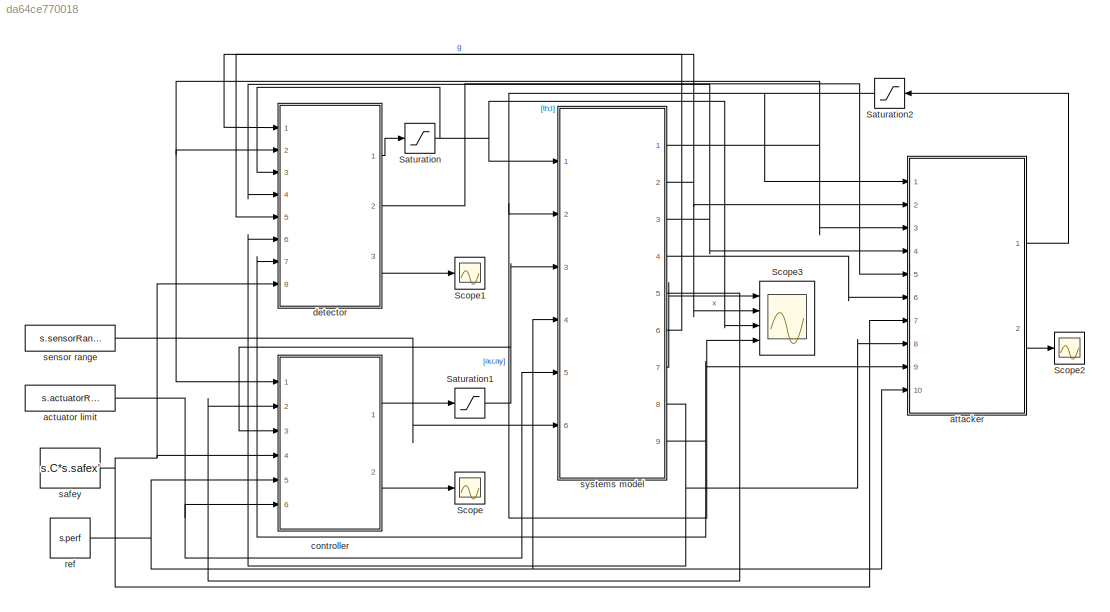
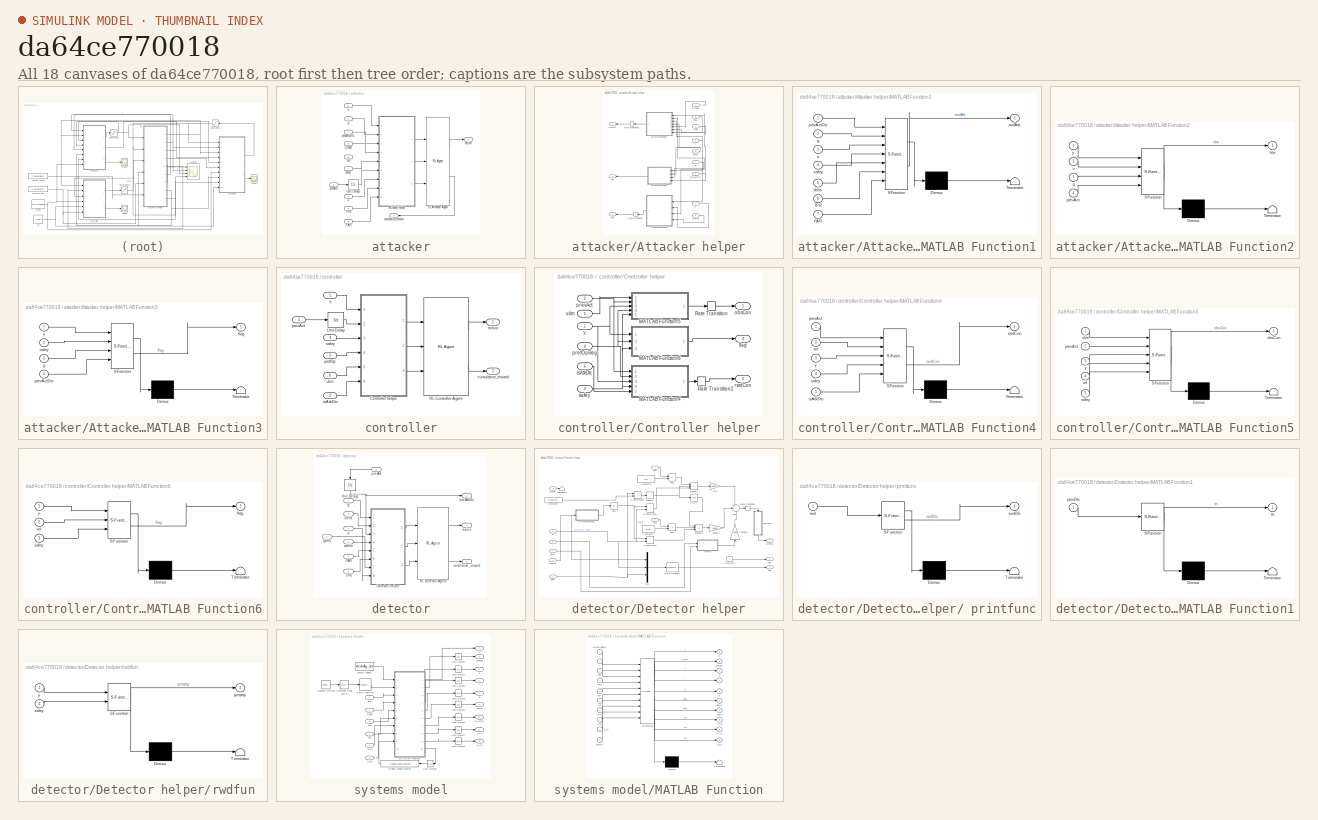
[diagram: thumbnail index - all 18 canvases of the model, root first then tree order]
MODEL slx_da64ce770018
KIND model
CONFIG AbsTol = auto
CONFIG EnableMultiTasking = off
CONFIG FixedStep = auto
CONFIG MaxStep = auto
CONFIG MinStep = auto
CONFIG RelTol = 1e-3
CONFIG SampleTimeConstraint = Unconstrained
CONFIG SolverName = VariableStepAuto
CONFIG StartTime = 0.0
CONFIG StopTime = 10
BLOCK [Saturate] Saturation
  LowerLimit = [0;1]
  UpperLimit = [100;simlen]
BLOCK [Saturate] Saturation1
  LowerLimit = -s.actuatorRange
  UpperLimit = s.actuatorRange
BLOCK [Saturate] Saturation2
  LowerLimit = -[ulim;ylim]
  NameLocation = top
  UpperLimit = [ulim;ylim]
BLOCK [Scope] Scope
  Floating = off
  NumInputPorts = 1
  Ports = [1]
  ScopeSpecificationString = Simulink.scopes.TimeScopeBlockCfg('CurrentConfiguration', extmgr.ConfigurationSet(extmgr.Configuration('Core','General UI',true),extmgr.Configuration('Core','Source UI',true),extmgr.Configuration('Sources','WiredSimulink',true,'DataLoggingVariableName','ScopeData2'),extmgr.Configuration('Visuals','Time Domain',true,'SerializedDisplays',{struct('MinYLimReal','-4538.33425','MaxYLimReal','504.25936',...<+1444ch>
BLOCK [Scope] Scope1
  Floating = off
  NumInputPorts = 1
  Ports = [1]
  ScopeSpecificationString = Simulink.scopes.TimeScopeBlockCfg('CurrentConfiguration', extmgr.ConfigurationSet(extmgr.Configuration('Core','General UI',true),extmgr.Configuration('Core','Source UI',true),extmgr.Configuration('Sources','WiredSimulink',true,'DataLoggingVariableName','ScopeData3'),extmgr.Configuration('Visuals','Time Domain',true,'SerializedDisplays',{struct('MinYLimReal','-16882.02979','MaxYLimReal','2617.97021...<+1477ch>
BLOCK [Scope] Scope2
  Floating = off
  NameLocation = top
  NumInputPorts = 1
  Ports = [1]
  ScopeSpecificationString = Simulink.scopes.TimeScopeBlockCfg('CurrentConfiguration', extmgr.ConfigurationSet(extmgr.Configuration('Core','General UI',true),extmgr.Configuration('Core','Source UI',true),extmgr.Configuration('Sources','WiredSimulink',true),extmgr.Configuration('Visuals','Time Domain',true,'SerializedDisplays',{struct('MinYLimReal','-2076.55129','MaxYLimReal','18688.96162','YLabelReal','','MinYLimMag','  0.000...<+1436ch>
BLOCK [Scope] Scope3
  Floating = off
  NumInputPorts = 4
  Ports = [4]
  ScopeSpecificationString = Simulink.scopes.TimeScopeBlockCfg('CurrentConfiguration', extmgr.ConfigurationSet(extmgr.Configuration('Core','General UI',true),extmgr.Configuration('Core','Source UI',true),extmgr.Configuration('Sources','WiredSimulink',true,'DataLoggingVariableName','ScopeData1'),extmgr.Configuration('Visuals','Time Domain',true,'SerializedDisplays',{struct('MinYLimReal','-6.89206','MaxYLimReal','50.46208','YLa...<+1700ch>
BLOCK [Constant] actuator limit
  Value = s.actuatorRange
BLOCK [SubSystem] attacker
  Ports = [10, 2]
  RequestExecContextInheritance = off
BLOCK [SubSystem] attacker/Attacker helper
  Ports = [9, 3]
  RequestExecContextInheritance = off
BLOCK [Inport] attacker/Attacker helper/FAR
  Port = 9
BLOCK [SubSystem] attacker/Attacker helper/MATLAB Function1
  ErrorFcn = Stateflow.Translate.translate
  PermitHierarchicalResolution = ExplicitOnly
  Ports = [7, 1]
  RequestExecContextInheritance = off
  SFBlockType = MATLAB Function
  TreatAsAtomicUnit = on
BLOCK [Demux] attacker/Attacker helper/MATLAB Function1/ Demux 
  Outputs = 1
  Ports = [1, 1]
BLOCK [S-Function] attacker/Attacker helper/MATLAB Function1/ SFunction 
  EnableBusSupport = on
  FunctionName = sf_sfun
  PortCounts = [7 2]
  Ports = [7, 2]
  SFcnIsStateOwnerBlock = off
  SFunctionDeploymentMode = off
  Tag = Stateflow S-Function 1
BLOCK [Terminator] attacker/Attacker helper/MATLAB Function1/ Terminator 
BLOCK [Inport] attacker/Attacker helper/MATLAB Function1/FAR
  Port = 7
BLOCK [Inport] attacker/Attacker helper/MATLAB Function1/TPR
  Port = 6
BLOCK [Inport] attacker/Attacker helper/MATLAB Function1/delta
  Port = 5
BLOCK [Inport] attacker/Attacker helper/MATLAB Function1/g
  Port = 2
BLOCK [Inport] attacker/Attacker helper/MATLAB Function1/prevActDtc
BLOCK [Outport] attacker/Attacker helper/MATLAB Function1/rwdAtk
BLOCK [Inport] attacker/Attacker helper/MATLAB Function1/safey
  Port = 4
BLOCK [Inport] attacker/Attacker helper/MATLAB Function1/y
  Port = 3
BLOCK [SubSystem] attacker/Attacker helper/MATLAB Function2
  ErrorFcn = Stateflow.Translate.translate
  PermitHierarchicalResolution = ExplicitOnly
  Ports = [4, 1]
  RequestExecContextInheritance = off
  SFBlockType = MATLAB Function
  TreatAsAtomicUnit = on
BLOCK [Demux] attacker/Attacker helper/MATLAB Function2/ Demux 
  Outputs = 1
  Ports = [1, 1]
BLOCK [S-Function] attacker/Attacker helper/MATLAB Function2/ SFunction 
  EnableBusSupport = on
  FunctionName = sf_sfun
  PortCounts = [4 2]
  Ports = [4, 2]
  SFcnIsStateOwnerBlock = off
  SFunctionDeploymentMode = off
  Tag = Stateflow S-Function 3
BLOCK [Terminator] attacker/Attacker helper/MATLAB Function2/ Terminator 
BLOCK [Inport] attacker/Attacker helper/MATLAB Function2/g
  Port = 3
BLOCK [Outport] attacker/Attacker helper/MATLAB Function2/obs
BLOCK [Inport] attacker/Attacker helper/MATLAB Function2/prevAct
  Port = 4
BLOCK [Inport] attacker/Attacker helper/MATLAB Function2/u
  Port = 2
BLOCK [Inport] attacker/Attacker helper/MATLAB Function2/y
BLOCK [SubSystem] attacker/Attacker helper/MATLAB Function3
  ErrorFcn = Stateflow.Translate.translate
  PermitHierarchicalResolution = ExplicitOnly
  Ports = [4, 1]
  RequestExecContextInheritance = off
  SFBlockType = MATLAB Function
  TreatAsAtomicUnit = on
BLOCK [Demux] attacker/Attacker helper/MATLAB Function3/ Demux 
  Outputs = 1
  Ports = [1, 1]
BLOCK [S-Function] attacker/Attacker helper/MATLAB Function3/ SFunction 
  EnableBusSupport = on
  FunctionName = sf_sfun
  PortCounts = [4 2]
  Ports = [4, 2]
  SFcnIsStateOwnerBlock = off
  SFunctionDeploymentMode = off
  Tag = Stateflow S-Function 4
BLOCK [Terminator] attacker/Attacker helper/MATLAB Function3/ Terminator 
BLOCK [Outport] attacker/Attacker helper/MATLAB Function3/flag
BLOCK [Inport] attacker/Attacker helper/MATLAB Function3/g
  Port = 3
BLOCK [Inport] attacker/Attacker helper/MATLAB Function3/prevActDtc
  Port = 4
BLOCK [Inport] attacker/Attacker helper/MATLAB Function3/safey
  Port = 2
BLOCK [Inport] attacker/Attacker helper/MATLAB Function3/y
BLOCK [RateTransition] attacker/Attacker helper/Rate Transition
BLOCK [RateTransition] attacker/Attacker helper/Rate Transition1
BLOCK [Inport] attacker/Attacker helper/TPR
  Port = 8
BLOCK [Outport] attacker/Attacker helper/flag
  Port = 3
BLOCK [Inport] attacker/Attacker helper/g
  Port = 2
BLOCK [Outport] attacker/Attacker helper/obs
BLOCK [Inport] attacker/Attacker helper/prevAct
  Port = 6
BLOCK [Inport] attacker/Attacker helper/prevActDtc
  Port = 3
BLOCK [Outport] attacker/Attacker helper/rwdAtk
  Port = 2
BLOCK [Inport] attacker/Attacker helper/safey
  Port = 5
BLOCK [Inport] attacker/Attacker helper/u
  Port = 7
BLOCK [Inport] attacker/Attacker helper/y
BLOCK [Inport] attacker/Attacker helper/z_mean
  Port = 4
BLOCK [Inport] attacker/FAR
  Port = 9
BLOCK [Reference] attacker/RL Attacker Agent  REF=rllib/RL Agent
  NameLocation = top
  Ports = [3, 2]
  SourceBlock = rllib/RL Agent
  SourceProductBaseCode = RL
  SourceType = RL Agent
BLOCK [Inport] attacker/TPR
  Port = 8
BLOCK [UnitDelay] attacker/Unit Delay2
  HasFrameUpgradeWarning = on
  SampleTime = -1
BLOCK [Outport] attacker/action
BLOCK [Outport] attacker/cumulative_reward
  Port = 2
BLOCK [Inport] attacker/g
  Port = 2
BLOCK [Inport] attacker/prevAct
BLOCK [Inport] attacker/prevActDtc
  Port = 5
BLOCK [Inport] attacker/ref
  Port = 10
BLOCK [Inport] attacker/safey
  Port = 7
BLOCK [Inport] attacker/u
  Port = 6
BLOCK [Inport] attacker/y
  Port = 3
BLOCK [Inport] attacker/z_mean
  Port = 4
BLOCK [SubSystem] controller
  Ports = [6, 2]
  RequestExecContextInheritance = off
BLOCK [SubSystem] controller/Controller helper
  Ports = [6, 3]
  RequestExecContextInheritance = off
BLOCK [SubSystem] controller/Controller helper/MATLAB Function4
  ErrorFcn = Stateflow.Translate.translate
  PermitHierarchicalResolution = ExplicitOnly
  Ports = [5, 1]
  RequestExecContextInheritance = off
  SFBlockType = MATLAB Function
  TreatAsAtomicUnit = on
BLOCK [Demux] controller/Controller helper/MATLAB Function4/ Demux 
  Outputs = 1
  Ports = [1, 1]
BLOCK [S-Function] controller/Controller helper/MATLAB Function4/ SFunction 
  EnableBusSupport = on
  FunctionName = sf_sfun
  PortCounts = [5 2]
  Ports = [5, 2]
  SFcnIsStateOwnerBlock = off
  SFunctionDeploymentMode = off
  Tag = Stateflow S-Function 5
BLOCK [Terminator] controller/Controller helper/MATLAB Function4/ Terminator 
BLOCK [Inport] controller/Controller helper/MATLAB Function4/isAtkDtc
  Port = 5
BLOCK [Inport] controller/Controller helper/MATLAB Function4/prevAct
BLOCK [Inport] controller/Controller helper/MATLAB Function4/ref
  Port = 2
BLOCK [Outport] controller/Controller helper/MATLAB Function4/rwdCon
BLOCK [Inport] controller/Controller helper/MATLAB Function4/safey
  Port = 4
BLOCK [Inport] controller/Controller helper/MATLAB Function4/y
  Port = 3
BLOCK [SubSystem] controller/Controller helper/MATLAB Function5
  ErrorFcn = Stateflow.Translate.translate
  PermitHierarchicalResolution = ExplicitOnly
  Ports = [5, 1]
  RequestExecContextInheritance = off
  SFBlockType = MATLAB Function
  TreatAsAtomicUnit = on
BLOCK [Demux] controller/Controller helper/MATLAB Function5/ Demux 
  Outputs = 1
  Ports = [1, 1]
BLOCK [S-Function] controller/Controller helper/MATLAB Function5/ SFunction 
  EnableBusSupport = on
  FunctionName = sf_sfun
  PortCounts = [5 2]
  Ports = [5, 2]
  SFcnIsStateOwnerBlock = off
  SFunctionDeploymentMode = off
  Tag = Stateflow S-Function 6
BLOCK [Terminator] controller/Controller helper/MATLAB Function5/ Terminator 
BLOCK [Outport] controller/Controller helper/MATLAB Function5/obsCon
BLOCK [Inport] controller/Controller helper/MATLAB Function5/prevAct
  Port = 2
BLOCK [Inport] controller/Controller helper/MATLAB Function5/ref
  Port = 4
BLOCK [Inport] controller/Controller helper/MATLAB Function5/safey
  Port = 5
BLOCK [Inport] controller/Controller helper/MATLAB Function5/ulim
BLOCK [Inport] controller/Controller helper/MATLAB Function5/y
  Port = 3
BLOCK [SubSystem] controller/Controller helper/MATLAB Function6
  ErrorFcn = Stateflow.Translate.translate
  PermitHierarchicalResolution = ExplicitOnly
  Ports = [3, 1]
  RequestExecContextInheritance = off
  SFBlockType = MATLAB Function
  TreatAsAtomicUnit = on
BLOCK [Demux] controller/Controller helper/MATLAB Function6/ Demux 
  Outputs = 1
  Ports = [1, 1]
BLOCK [S-Function] controller/Controller helper/MATLAB Function6/ SFunction 
  EnableBusSupport = on
  FunctionName = sf_sfun
  PortCounts = [3 2]
  Ports = [3, 2]
  SFcnIsStateOwnerBlock = off
  SFunctionDeploymentMode = off
  Tag = Stateflow S-Function 7
BLOCK [Terminator] controller/Controller helper/MATLAB Function6/ Terminator 
BLOCK [Outport] controller/Controller helper/MATLAB Function6/flag
BLOCK [Inport] controller/Controller helper/MATLAB Function6/ref
  Port = 2
BLOCK [Inport] controller/Controller helper/MATLAB Function6/safey
  Port = 3
BLOCK [Inport] controller/Controller helper/MATLAB Function6/y
BLOCK [RateTransition] controller/Controller helper/Rate Transition
BLOCK [RateTransition] controller/Controller helper/Rate Transition2
BLOCK [Outport] controller/Controller helper/flag
  Port = 3
BLOCK [Inport] controller/Controller helper/isAtkDtc
  Port = 6
BLOCK [Outport] controller/Controller helper/obsCon
BLOCK [Inport] controller/Controller helper/prefOpReg
  Port = 4
BLOCK [Inport] controller/Controller helper/prevAct
  Port = 2
BLOCK [Outport] controller/Controller helper/rwdCon
  Port = 2
BLOCK [Inport] controller/Controller helper/safey
  Port = 3
BLOCK [Inport] controller/Controller helper/ulim
  Port = 5
BLOCK [Inport] controller/Controller helper/y
BLOCK [Reference] controller/RL Controller Agent  REF=rllib/RL Agent
  Ports = [3, 2]
  SourceBlock = rllib/RL Agent
  SourceProductBaseCode = RL
  SourceType = RL Agent
BLOCK [UnitDelay] controller/Unit Delay
  HasFrameUpgradeWarning = on
  SampleTime = -1
BLOCK [Outport] controller/action
BLOCK [Outport] controller/cumulative_reward
  Port = 2
BLOCK [Inport] controller/isAtkDtc
  Port = 2
BLOCK [Inport] controller/prefOp
  Port = 5
BLOCK [Inport] controller/prevAct
  Port = 3
BLOCK [Inport] controller/safey
  Port = 4
BLOCK [Inport] controller/ulim
  Port = 6
BLOCK [Inport] controller/y
BLOCK [SubSystem] detector
  Ports = [8, 3]
  RequestExecContextInheritance = off
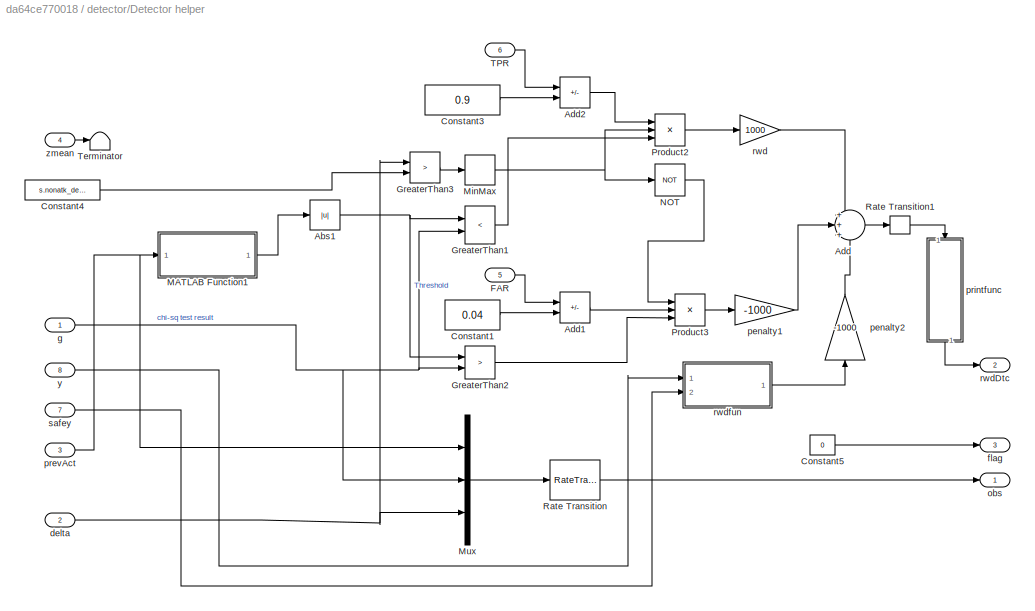
BLOCK [SubSystem] detector/Detector helper
  Ports = [8, 3]
  RequestExecContextInheritance = off
BLOCK [SubSystem] detector/Detector helper/ printfunc
  ErrorFcn = Stateflow.Translate.translate
  NameLocation = left
  PermitHierarchicalResolution = ExplicitOnly
  Ports = [1, 1]
  RequestExecContextInheritance = off
  SFBlockType = MATLAB Function
  TreatAsAtomicUnit = on
BLOCK [Demux] detector/Detector helper/ printfunc/ Demux 
  Outputs = 1
  Ports = [1, 1]
BLOCK [S-Function] detector/Detector helper/ printfunc/ SFunction 
  EnableBusSupport = on
  FunctionName = sf_sfun
  PortCounts = [1 2]
  Ports = [1, 2]
  SFcnIsStateOwnerBlock = off
  SFunctionDeploymentMode = off
  Tag = Stateflow S-Function 8
BLOCK [Terminator] detector/Detector helper/ printfunc/ Terminator 
BLOCK [Inport] detector/Detector helper/ printfunc/rwd
BLOCK [Outport] detector/Detector helper/ printfunc/rwdDtc
BLOCK [Abs] detector/Detector helper/Abs1
  SaturateOnIntegerOverflow = off
BLOCK [Sum] detector/Detector helper/Add
  Inputs = +++
  Ports = [3, 1]
BLOCK [Sum] detector/Detector helper/Add1
  IconShape = rectangular
  Inputs = +-
  Ports = [2, 1]
BLOCK [Sum] detector/Detector helper/Add2
  IconShape = rectangular
  Inputs = +-
  Ports = [2, 1]
BLOCK [Constant] detector/Detector helper/Constant1
  SampleTime = Ts
  Value = 0.04
BLOCK [Constant] detector/Detector helper/Constant3
  SampleTime = Ts
  Value = 0.9
BLOCK [Constant] detector/Detector helper/Constant4
  SampleTime = Ts
  Value = s.nonatk_delta
BLOCK [Constant] detector/Detector helper/Constant5
  SampleTime = Ts
  Value = 0
BLOCK [Inport] detector/Detector helper/FAR
  Port = 5
BLOCK [RelationalOperator] detector/Detector helper/GreaterThan1
  InputSameDT = off
  Operator = <
  OutDataTypeStr = boolean
  Ports = [2, 1]
  RndMeth = Simplest
BLOCK [RelationalOperator] detector/Detector helper/GreaterThan2
  InputSameDT = off
  Operator = >
  OutDataTypeStr = boolean
  Ports = [2, 1]
  RndMeth = Simplest
BLOCK [RelationalOperator] detector/Detector helper/GreaterThan3
  InputSameDT = off
  Operator = >
  OutDataTypeStr = boolean
  Ports = [2, 1]
  RndMeth = Simplest
BLOCK [SubSystem] detector/Detector helper/MATLAB Function1
  ErrorFcn = Stateflow.Translate.translate
  PermitHierarchicalResolution = ExplicitOnly
  Ports = [1, 1]
  RequestExecContextInheritance = off
  SFBlockType = MATLAB Function
  TreatAsAtomicUnit = on
BLOCK [Demux] detector/Detector helper/MATLAB Function1/ Demux 
  Outputs = 1
  Ports = [1, 1]
BLOCK [S-Function] detector/Detector helper/MATLAB Function1/ SFunction 
  EnableBusSupport = on
  FunctionName = sf_sfun
  PortCounts = [1 2]
  Ports = [1, 2]
  SFcnIsStateOwnerBlock = off
  SFunctionDeploymentMode = off
  Tag = Stateflow S-Function 9
BLOCK [Terminator] detector/Detector helper/MATLAB Function1/ Terminator 
BLOCK [Inport] detector/Detector helper/MATLAB Function1/prevDtc
BLOCK [Outport] detector/Detector helper/MATLAB Function1/th
BLOCK [MinMax] detector/Detector helper/MinMax
  Function = max
  Ports = [1, 1]
BLOCK [Mux] detector/Detector helper/Mux
  DisplayOption = bar
  Inputs = 3
  Ports = [3, 1]
BLOCK [Logic] detector/Detector helper/NOT
  AllPortsSameDT = off
  IconShape = distinctive
  Operator = NOT
  OutDataTypeStr = boolean
  Ports = [1, 1]
BLOCK [Product] detector/Detector helper/Product2
  Inputs = 3
  Ports = [3, 1]
BLOCK [Product] detector/Detector helper/Product3
  Inputs = 3
  Ports = [3, 1]
BLOCK [RateTransition] detector/Detector helper/Rate Transition
BLOCK [RateTransition] detector/Detector helper/Rate Transition1
BLOCK [Inport] detector/Detector helper/TPR
  Port = 6
BLOCK [Terminator] detector/Detector helper/Terminator
BLOCK [Inport] detector/Detector helper/delta
  Port = 2
BLOCK [Outport] detector/Detector helper/flag
  Port = 3
BLOCK [Inport] detector/Detector helper/g
BLOCK [Outport] detector/Detector helper/obs
BLOCK [Gain] detector/Detector helper/penalty1
  Gain = -1000
BLOCK [Gain] detector/Detector helper/penalty2
  Gain = -1000
  NameLocation = right
BLOCK [Inport] detector/Detector helper/prevAct
  Port = 3
BLOCK [Gain] detector/Detector helper/rwd
  Gain = 1000
BLOCK [Outport] detector/Detector helper/rwdDtc
  Port = 2
BLOCK [SubSystem] detector/Detector helper/rwdfun
  ErrorFcn = Stateflow.Translate.translate
  NameLocation = top
  PermitHierarchicalResolution = ExplicitOnly
  Ports = [2, 1]
  RequestExecContextInheritance = off
  SFBlockType = MATLAB Function
  TreatAsAtomicUnit = on
BLOCK [Demux] detector/Detector helper/rwdfun/ Demux 
  Outputs = 1
  Ports = [1, 1]
BLOCK [S-Function] detector/Detector helper/rwdfun/ SFunction 
  EnableBusSupport = on
  FunctionName = sf_sfun
  PortCounts = [2 2]
  Ports = [2, 2]
  SFcnIsStateOwnerBlock = off
  SFunctionDeploymentMode = off
  Tag = Stateflow S-Function 10
BLOCK [Terminator] detector/Detector helper/rwdfun/ Terminator 
BLOCK [Outport] detector/Detector helper/rwdfun/penalty
BLOCK [Inport] detector/Detector helper/rwdfun/safey
  Port = 2
BLOCK [Inport] detector/Detector helper/rwdfun/y
BLOCK [Inport] detector/Detector helper/safey
  Port = 7
BLOCK [Inport] detector/Detector helper/y
  Port = 8
BLOCK [Inport] detector/Detector helper/zmean
  Port = 4
BLOCK [Inport] detector/FAR
  Port = 7
BLOCK [Reference] detector/RL Detector Agent  REF=rllib/RL Agent
  Ports = [3, 2]
  SourceBlock = rllib/RL Agent
  SourceProductBaseCode = RL
  SourceType = RL Agent
BLOCK [Inport] detector/TPR
  Port = 6
BLOCK [UnitDelay] detector/Unit Delay1
  HasFrameUpgradeWarning = on
  NameLocation = left
  SampleTime = -1
BLOCK [Outport] detector/action
BLOCK [Outport] detector/cumulative_reward
  Port = 3
BLOCK [Inport] detector/delta
  Port = 4
BLOCK [Inport] detector/g
BLOCK [Inport] detector/prevAct
  Port = 3
BLOCK [Outport] detector/prevActDtc
  Port = 2
BLOCK [Inport] detector/safey
  Port = 8
BLOCK [Inport] detector/y
  Port = 2
BLOCK [Inport] detector/zmean
  Port = 5
BLOCK [Constant] ref
  Value = s.perf
BLOCK [Constant] safey
  Value = s.C*s.safex'
BLOCK [Constant] sensor range
  Value = s.sensorRange
BLOCK [SubSystem] systems model
  Ports = [6, 9]
  RequestExecContextInheritance = off
BLOCK [Reference] systems model/Counter Limited  REF=simulink/Sources/Counter
Limited
  Ports = [0, 1]
  SourceBlock = simulink/Sources/Counter\nLimited
  SourceProductBaseCode = SL
  SourceType = Counter Limited
BLOCK [Outport] systems model/FAR
  Port = 9
BLOCK [Reference] systems model/Increment Real World  REF=simulink/Additional Math
& Discrete/Additional Math:
Increment - Decrement/Increment
Real World
  Ports = [1, 1]
  SourceBlock = simulink/Additional Math\n& Discrete/Additional Math:\nIncrement - Decrement/Increment\nReal World
  SourceProductBaseCode = SL
  SourceType = Real World Value Increment
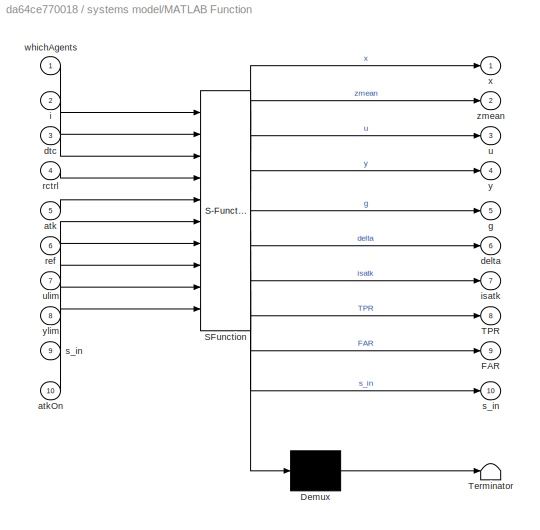
BLOCK [SubSystem] systems model/MATLAB Function
  ErrorFcn = Stateflow.Translate.translate
  PermitHierarchicalResolution = ExplicitOnly
  Ports = [10, 10]
  RequestExecContextInheritance = off
  SFBlockType = MATLAB Function
  TreatAsAtomicUnit = on
BLOCK [Demux] systems model/MATLAB Function/ Demux 
  Outputs = 1
  Ports = [1, 1]
BLOCK [S-Function] systems model/MATLAB Function/ SFunction 
  EnableBusSupport = on
  FunctionName = sf_sfun
  PortCounts = [10 11]
  Ports = [10, 11]
  SFcnIsStateOwnerBlock = off
  SFunctionDeploymentMode = off
  Tag = Stateflow S-Function 2
BLOCK [Terminator] systems model/MATLAB Function/ Terminator 
BLOCK [Outport] systems model/MATLAB Function/FAR
  Port = 9
BLOCK [Outport] systems model/MATLAB Function/TPR
  Port = 8
BLOCK [Inport] systems model/MATLAB Function/atk
  Port = 5
BLOCK [Inport] systems model/MATLAB Function/atkOn
  Port = 10
BLOCK [Outport] systems model/MATLAB Function/delta
  Port = 6
BLOCK [Inport] systems model/MATLAB Function/dtc
  Port = 3
BLOCK [Outport] systems model/MATLAB Function/g
  Port = 5
BLOCK [Inport] systems model/MATLAB Function/i
  Port = 2
BLOCK [Outport] systems model/MATLAB Function/isatk
  Port = 7
BLOCK [Inport] systems model/MATLAB Function/rctrl
  Port = 4
BLOCK [Inport] systems model/MATLAB Function/ref
  Port = 6
BLOCK [Outport] systems model/MATLAB Function/s_in
  Port = 10
BLOCK [Inport] systems model/MATLAB Function/s_in 
  Port = 9
BLOCK [Outport] systems model/MATLAB Function/u
  Port = 3
BLOCK [Inport] systems model/MATLAB Function/ulim
  Port = 7
BLOCK [Inport] systems model/MATLAB Function/whichAgents
BLOCK [Outport] systems model/MATLAB Function/x
BLOCK [Outport] systems model/MATLAB Function/y
  Port = 4
BLOCK [Inport] systems model/MATLAB Function/ylim
  Port = 8
BLOCK [Outport] systems model/MATLAB Function/zmean
  Port = 2
BLOCK [RateTransition] systems model/Rate Transition
BLOCK [SignalSpecification] systems model/Signal Specification
  BusOutputAsStruct = on
  OutDataTypeStr = Bus: slBus1
BLOCK [Outport] systems model/TPR
  Port = 8
BLOCK [UnitDelay] systems model/Unit Delay1
  HasFrameUpgradeWarning = on
  SampleTime = -1
BLOCK [UnitDelay] systems model/Unit Delay2
  HasFrameUpgradeWarning = on
  SampleTime = -1
BLOCK [UnitDelay] systems model/Unit Delay3
  HasFrameUpgradeWarning = on
  SampleTime = -1
BLOCK [UnitDelay] systems model/Unit Delay4
  HasFrameUpgradeWarning = on
  SampleTime = -1
BLOCK [UnitDelay] systems model/Unit Delay5
  HasFrameUpgradeWarning = on
  SampleTime = -1
BLOCK [UnitDelay] systems model/Unit Delay6
  HasFrameUpgradeWarning = on
  SampleTime = -1
BLOCK [UnitDelay] systems model/Unit Delay7
  HasFrameUpgradeWarning = on
  SampleTime = -1
BLOCK [UnitDelay] systems model/Unit Delay8
  HasFrameUpgradeWarning = on
  InitialCondition = s
  SampleTime = -1
BLOCK [UnitDelay] systems model/Unit Delay9
  HasFrameUpgradeWarning = on
  SampleTime = -1
BLOCK [Constant] systems model/Which Agents
  SampleTime = Ts
  Value = whichAg_sim
BLOCK [Inport] systems model/atk
  Port = 2
BLOCK [Outport] systems model/delta
  Port = 3
BLOCK [Inport] systems model/dtc
BLOCK [Outport] systems model/g
  Port = 2
BLOCK [Outport] systems model/isAtkDtc
  Port = 5
BLOCK [Inport] systems model/ref
  Port = 4
BLOCK [Outport] systems model/u
  Port = 4
BLOCK [Inport] systems model/u_new
  Port = 3
BLOCK [Inport] systems model/ulim
  Port = 5
BLOCK [Outport] systems model/x
  Port = 7
BLOCK [Outport] systems model/y
BLOCK [Inport] systems model/ylim
  Port = 6
BLOCK [Outport] systems model/zmean
  Port = 6
NET Saturation1:1 -> controller:3, systems model:3
NET Saturation2:1 -> Scope3:4, attacker:1, systems model:2
NET Saturation:1 -> Scope3:3, detector:3, systems model:1
NET actuator limit:1 -> controller:6, systems model:5
LINE attacker/Attacker helper/FAR:1 -> attacker/Attacker helper/MATLAB Function1:7
LINE attacker/Attacker helper/MATLAB Function1:1 -> attacker/Attacker helper/Rate Transition1:1
LINE attacker/Attacker helper/MATLAB Function2:1 -> attacker/Attacker helper/Rate Transition:1
LINE attacker/Attacker helper/MATLAB Function3:1 -> attacker/Attacker helper/flag:1
LINE attacker/Attacker helper/Rate Transition1:1 -> attacker/Attacker helper/rwdAtk:1
LINE attacker/Attacker helper/Rate Transition:1 -> attacker/Attacker helper/obs:1
LINE attacker/Attacker helper/TPR:1 -> attacker/Attacker helper/MATLAB Function1:6
NET attacker/Attacker helper/g:1 -> attacker/Attacker helper/MATLAB Function1:2, attacker/Attacker helper/MATLAB Function2:3, attacker/Attacker helper/MATLAB Function3:3
LINE attacker/Attacker helper/prevAct:1 -> attacker/Attacker helper/MATLAB Function2:4
NET attacker/Attacker helper/prevActDtc:1 -> attacker/Attacker helper/MATLAB Function1:1, attacker/Attacker helper/MATLAB Function3:4
NET attacker/Attacker helper/safey:1 -> attacker/Attacker helper/MATLAB Function1:4, attacker/Attacker helper/MATLAB Function3:2
LINE attacker/Attacker helper/u:1 -> attacker/Attacker helper/MATLAB Function2:2
NET attacker/Attacker helper/y:1 -> attacker/Attacker helper/MATLAB Function1:3, attacker/Attacker helper/MATLAB Function2:1, attacker/Attacker helper/MATLAB Function3:1
LINE attacker/Attacker helper/z_mean:1 -> attacker/Attacker helper/MATLAB Function1:5
LINE attacker/Attacker helper:1 -> attacker/RL Attacker Agent:1
LINE attacker/Attacker helper:2 -> attacker/RL Attacker Agent:2
LINE attacker/Attacker helper:3 -> attacker/RL Attacker Agent:3
LINE attacker/FAR:1 -> attacker/Attacker helper:9
LINE attacker/RL Attacker Agent:1 -> attacker/action:1
LINE attacker/RL Attacker Agent:2 -> attacker/cumulative_reward:1
LINE attacker/TPR:1 -> attacker/Attacker helper:8
LINE attacker/Unit Delay2:1 -> attacker/Attacker helper:6
LINE attacker/g:1 -> attacker/Attacker helper:2
LINE attacker/prevAct:1 -> attacker/Unit Delay2:1
LINE attacker/prevActDtc:1 -> attacker/Attacker helper:3
LINE attacker/safey:1 -> attacker/Attacker helper:5
LINE attacker/u:1 -> attacker/Attacker helper:7
LINE attacker/y:1 -> attacker/Attacker helper:1
LINE attacker/z_mean:1 -> attacker/Attacker helper:4
LINE attacker:1 -> Saturation2:1
LINE attacker:2 -> Scope2:1
LINE controller/Controller helper/MATLAB Function4:1 -> controller/Controller helper/Rate Transition2:1
LINE controller/Controller helper/MATLAB Function5:1 -> controller/Controller helper/Rate Transition:1
LINE controller/Controller helper/MATLAB Function6:1 -> controller/Controller helper/flag:1
LINE controller/Controller helper/Rate Transition2:1 -> controller/Controller helper/rwdCon:1
LINE controller/Controller helper/Rate Transition:1 -> controller/Controller helper/obsCon:1
LINE controller/Controller helper/isAtkDtc:1 -> controller/Controller helper/MATLAB Function4:5
NET controller/Controller helper/prefOpReg:1 -> controller/Controller helper/MATLAB Function4:2, controller/Controller helper/MATLAB Function5:4, controller/Controller helper/MATLAB Function6:2
NET controller/Controller helper/prevAct:1 -> controller/Controller helper/MATLAB Function4:1, controller/Controller helper/MATLAB Function5:2
NET controller/Controller helper/safey:1 -> controller/Controller helper/MATLAB Function4:4, controller/Controller helper/MATLAB Function5:5, controller/Controller helper/MATLAB Function6:3
LINE controller/Controller helper/ulim:1 -> controller/Controller helper/MATLAB Function5:1
NET controller/Controller helper/y:1 -> controller/Controller helper/MATLAB Function4:3, controller/Controller helper/MATLAB Function5:3, controller/Controller helper/MATLAB Function6:1
LINE controller/Controller helper:1 -> controller/RL Controller Agent:1
LINE controller/Controller helper:2 -> controller/RL Controller Agent:2
LINE controller/Controller helper:3 -> controller/RL Controller Agent:3
LINE controller/RL Controller Agent:1 -> controller/action:1
LINE controller/RL Controller Agent:2 -> controller/cumulative_reward:1
LINE controller/Unit Delay:1 -> controller/Controller helper:2
LINE controller/isAtkDtc:1 -> controller/Controller helper:6
LINE controller/prefOp:1 -> controller/Controller helper:4
LINE controller/prevAct:1 -> controller/Unit Delay:1
LINE controller/safey:1 -> controller/Controller helper:3
LINE controller/ulim:1 -> controller/Controller helper:5
LINE controller/y:1 -> controller/Controller helper:1
LINE controller:1 -> Saturation1:1
LINE controller:2 -> Scope:1
LINE detector/Detector helper/ printfunc:1 -> detector/Detector helper/rwdDtc:1
NET detector/Detector helper/Abs1:1 -> detector/Detector helper/GreaterThan1:1, detector/Detector helper/GreaterThan2:1
LINE detector/Detector helper/Add1:1 -> detector/Detector helper/Product3:2
LINE detector/Detector helper/Add2:1 -> detector/Detector helper/Product2:1
LINE detector/Detector helper/Add:1 -> detector/Detector helper/Rate Transition1:1
LINE detector/Detector helper/Constant1:1 -> detector/Detector helper/Add1:2
LINE detector/Detector helper/Constant3:1 -> detector/Detector helper/Add2:2
LINE detector/Detector helper/Constant4:1 -> detector/Detector helper/GreaterThan3:2
LINE detector/Detector helper/Constant5:1 -> detector/Detector helper/flag:1
LINE detector/Detector helper/FAR:1 -> detector/Detector helper/Add1:1
LINE detector/Detector helper/GreaterThan1:1 -> detector/Detector helper/Product2:3
LINE detector/Detector helper/GreaterThan2:1 -> detector/Detector helper/Product3:3
LINE detector/Detector helper/GreaterThan3:1 -> detector/Detector helper/MinMax:1
LINE detector/Detector helper/MATLAB Function1:1 -> detector/Detector helper/Abs1:1
NET detector/Detector helper/MinMax:1 -> detector/Detector helper/NOT:1, detector/Detector helper/Product2:2
LINE detector/Detector helper/Mux:1 -> detector/Detector helper/Rate Transition:1
LINE detector/Detector helper/NOT:1 -> detector/Detector helper/Product3:1
LINE detector/Detector helper/Product2:1 -> detector/Detector helper/rwd:1
LINE detector/Detector helper/Product3:1 -> detector/Detector helper/penalty1:1
LINE detector/Detector helper/Rate Transition1:1 -> detector/Detector helper/ printfunc:1
LINE detector/Detector helper/Rate Transition:1 -> detector/Detector helper/obs:1
LINE detector/Detector helper/TPR:1 -> detector/Detector helper/Add2:1
NET detector/Detector helper/delta:1 -> detector/Detector helper/GreaterThan3:1, detector/Detector helper/Mux:3
NET detector/Detector helper/g:1 -> detector/Detector helper/GreaterThan1:2, detector/Detector helper/GreaterThan2:2, detector/Detector helper/Mux:2
LINE detector/Detector helper/penalty1:1 -> detector/Detector helper/Add:2
LINE detector/Detector helper/penalty2:1 -> detector/Detector helper/Add:3
NET detector/Detector helper/prevAct:1 -> detector/Detector helper/MATLAB Function1:1, detector/Detector helper/Mux:1
LINE detector/Detector helper/rwd:1 -> detector/Detector helper/Add:1
LINE detector/Detector helper/rwdfun:1 -> detector/Detector helper/penalty2:1
LINE detector/Detector helper/safey:1 -> detector/Detector helper/rwdfun:2
LINE detector/Detector helper/y:1 -> detector/Detector helper/rwdfun:1
LINE detector/Detector helper/zmean:1 -> detector/Detector helper/Terminator:1
LINE detector/Detector helper:1 -> detector/RL Detector Agent:1
LINE detector/Detector helper:2 -> detector/RL Detector Agent:2
LINE detector/Detector helper:3 -> detector/RL Detector Agent:3
LINE detector/FAR:1 -> detector/Detector helper:5
LINE detector/RL Detector Agent:1 -> detector/action:1
LINE detector/RL Detector Agent:2 -> detector/cumulative_reward:1
LINE detector/TPR:1 -> detector/Detector helper:6
NET detector/Unit Delay1:1 -> detector/Detector helper:3, detector/prevActDtc:1
LINE detector/delta:1 -> detector/Detector helper:2
LINE detector/g:1 -> detector/Detector helper:1
LINE detector/prevAct:1 -> detector/Unit Delay1:1
LINE detector/safey:1 -> detector/Detector helper:7
LINE detector/y:1 -> detector/Detector helper:8
LINE detector/zmean:1 -> detector/Detector helper:4
LINE detector:1 -> Saturation:1
LINE detector:2 -> attacker:5
LINE detector:3 -> Scope1:1
NET ref:1 -> attacker:10, controller:5, systems model:4
NET safey:1 -> attacker:7, controller:4, detector:8
LINE sensor range:1 -> systems model:6
LINE systems model/Counter Limited:1 -> systems model/Increment Real World:1
LINE systems model/Increment Real World:1 -> systems model/Rate Transition:1
LINE systems model/MATLAB Function:1 -> systems model/x:1
LINE systems model/MATLAB Function:10 -> systems model/Unit Delay8:1
LINE systems model/MATLAB Function:2 -> systems model/Unit Delay9:1
LINE systems model/MATLAB Function:3 -> systems model/Unit Delay1:1
LINE systems model/MATLAB Function:4 -> systems model/Unit Delay2:1
LINE systems model/MATLAB Function:5 -> systems model/Unit Delay3:1
LINE systems model/MATLAB Function:6 -> systems model/Unit Delay5:1
LINE systems model/MATLAB Function:7 -> systems model/Unit Delay4:1
LINE systems model/MATLAB Function:8 -> systems model/Unit Delay7:1
LINE systems model/MATLAB Function:9 -> systems model/Unit Delay6:1
LINE systems model/Rate Transition:1 -> systems model/MATLAB Function:2
LINE systems model/Signal Specification:1 -> systems model/MATLAB Function:9
LINE systems model/Unit Delay1:1 -> systems model/u:1
LINE systems model/Unit Delay2:1 -> systems model/y:1
LINE systems model/Unit Delay3:1 -> systems model/g:1
LINE systems model/Unit Delay4:1 -> systems model/isAtkDtc:1
LINE systems model/Unit Delay5:1 -> systems model/delta:1
LINE systems model/Unit Delay6:1 -> systems model/FAR:1
LINE systems model/Unit Delay7:1 -> systems model/TPR:1
LINE systems model/Unit Delay8:1 -> systems model/Signal Specification:1
LINE systems model/Unit Delay9:1 -> systems model/zmean:1
LINE systems model/Which Agents:1 -> systems model/MATLAB Function:1
LINE systems model/atk:1 -> systems model/MATLAB Function:5
LINE systems model/dtc:1 -> systems model/MATLAB Function:3
LINE systems model/ref:1 -> systems model/MATLAB Function:6
LINE systems model/u_new:1 -> systems model/MATLAB Function:4
LINE systems model/ulim:1 -> systems model/MATLAB Function:7
LINE systems model/ylim:1 -> systems model/MATLAB Function:8
NET systems model:1 -> attacker:3, controller:1, detector:2
NET systems model:2 -> Scope3:2, attacker:2, detector:1
NET systems model:3 -> attacker:4, detector:4
LINE systems model:4 -> attacker:6
LINE systems model:5 -> controller:2
LINE systems model:6 -> detector:5
LINE systems model:7 -> Scope3:1
NET systems model:8 -> attacker:8, detector:6
NET systems model:9 -> attacker:9, detector:7
note: NET lines group one-source signal fan-out (src -> all destinations, sorted); 1:1 wires keep LINE
CHART controller/Controller helper/MATLAB Function5 states=1 transitions=1
  STATE_LABEL 'eML_blk_kernel()'
  STATE_LABEL 'SCRIPT:\nfunction obsCon = obsCon(ulim,prevAct,y,ref,safey)\n   \n    obsCon=[ulim;prevAct;y;ref;safey];\n\n'
CHART controller/Controller helper/MATLAB Function6 states=1 transitions=1
  STATE_LABEL 'eML_blk_kernel()'
  STATE_LABEL 'SCRIPT:\nfunction flag = stop(y,ref,safey)\nflag= 0;\n% flag = abs((y-ref)/ref) <= 0.25;\n'
CHART detector/Detector helper/ printfunc states=1 transitions=1
  STATE_LABEL 'eML_blk_kernel()'
  STATE_LABEL 'SCRIPT:\nfunction rwdDtc = printVal(rwd)\nrwdDtc = rwd\n'
CHART detector/Detector helper/MATLAB Function1 states=1 transitions=1
  STATE_LABEL 'eML_blk_kernel()'
  STATE_LABEL 'SCRIPT:\nfunction th   = split(prevDtc)\n%    format long g;\n   th = prevDtc(1);\n    l = prevDtc(2);\nend\n\n'
CHART detector/Detector helper/rwdfun states=1 transitions=1
  STATE_LABEL 'eML_blk_kernel()'
  STATE_LABEL 'SCRIPT:\nfunction penalty = penY(y,safey)\npenalty = max(abs(y)-abs(safey))/max(safey);\n'
CHART attacker/Attacker helper/MATLAB Function1 states=1 transitions=1
  STATE_LABEL 'eML_blk_kernel()'
  STATE_LABEL "SCRIPT:\nfunction rwdAtk  = rwrdAtk(prevActDtc,g,y,safey,delta,TPR,FAR)\n%    format long g;\n   th = abs(prevActDtc(1));\n   tau = max(1,ceil(prevActDtc(2,1)));\n   dof = size(y,1)*(tau);\n%    FAR = chi2cdf(th,dof,'upper')\n%    TPR = ncx2cdf(th,dof,abs(delta),'upper');\n%    rwdAtk = FAR/TPR + 50*(g<th)+ 100*(y-ref)^2;\n%             50*(FAR-0.05)-40*TPR + 50*(g<th)+ 100*(abs(y)-abs(safey))\n% % rwdAtk =...<+274ch>"
CHART systems model/MATLAB Function states=1 transitions=1
  STATE_LABEL 'eML_blk_kernel()'
  STATE_LABEL 'SCRIPT:\nfunction [x,zmean,u,y,g,delta,isatk,TPR,FAR,s_in] = env(whichAgents,i,dtc,rctrl,atk,ref,ulim,ylim,s_in, atkOn)\n% function [y,g,z_mean]= envSys(atk,dtc,new_u,ref, s)\ndisp("-------------iteration: "+i+"--------------")\nxdim= size(s_in.A,2);\nydim= size(s_in.C,1);\nudim= size(s_in.B,2);\nau= zeros(udim,1);\nay= zeros(ydim,1);\n%% SYS_ENV progress every iteration goes here\nif ~rem(whichAgents,2)\n  ...<+3608ch>'
CHART attacker/Attacker helper/MATLAB Function2 states=1 transitions=1
  STATE_LABEL 'eML_blk_kernel()'
  STATE_LABEL 'SCRIPT:\nfunction obs = obsAtk(y,u,g,prevAct)\n%     format long g;\n    ay= prevAct(1,1);\n    au= prevAct(2,1);\n    obs= [y;u;g;prevAct];\n\n '
CHART attacker/Attacker helper/MATLAB Function3 states=1 transitions=1
  STATE_LABEL 'eML_blk_kernel()'
  STATE_LABEL 'SCRIPT:\nfunction flag  = stop(y,safey, g, prevActDtc)\n%     format long g;\n    th = abs(prevActDtc(1));\n%     flag = g > th;\nflag= 0;\n'
CHART controller/Controller helper/MATLAB Function4 states=1 transitions=1
  STATE_LABEL 'eML_blk_kernel()'
  STATE_LABEL "SCRIPT:\nfunction rwdCon  = rwrdCon(prevAct,ref,y,safey,isAtkDtc)\n%     format long g;\n    u=prevAct;\n%     ay=atk(2);\n    %% safer : 0.5* safey\n%     rwdCon = 350*(abs((y-ref)/ref) <= 0.30)-20*(prevAct)^2-100*(abs(y) > safey)-50\n% rwdCon = isAtkDtc*(-(y-ref*safey)'*1000*(y-ref*safey))%-20*u^2\n% rwdCon = isAtkDtc*(abs(ref*safey)-abs(y))'*1000*(abs(ref*safey)-abs(y))\nrwdCon = isAtkDtc*1000*max(abs(r...<+37ch>"
CHART  states=0 transitions=0
CHART  states=0 transitions=0
CHART  states=0 transitions=0
CHART  states=0 transitions=0
CHART  states=0 transitions=0
CHART  states=0 transitions=0
CHART  states=0 transitions=0
CHART  states=0 transitions=0
CHART  states=0 transitions=0
CHART  states=0 transitions=0
